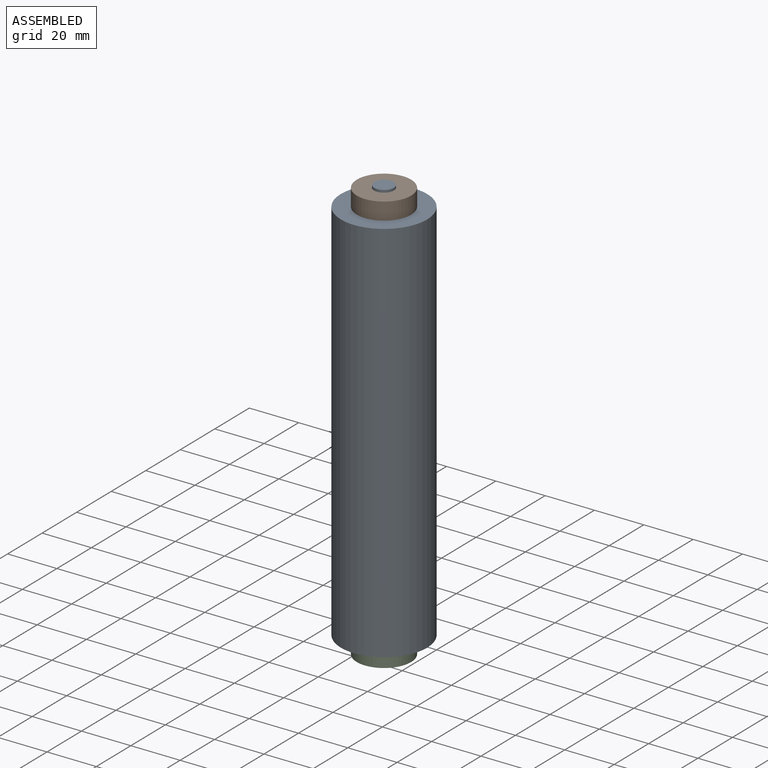
[diagram: assembled view]
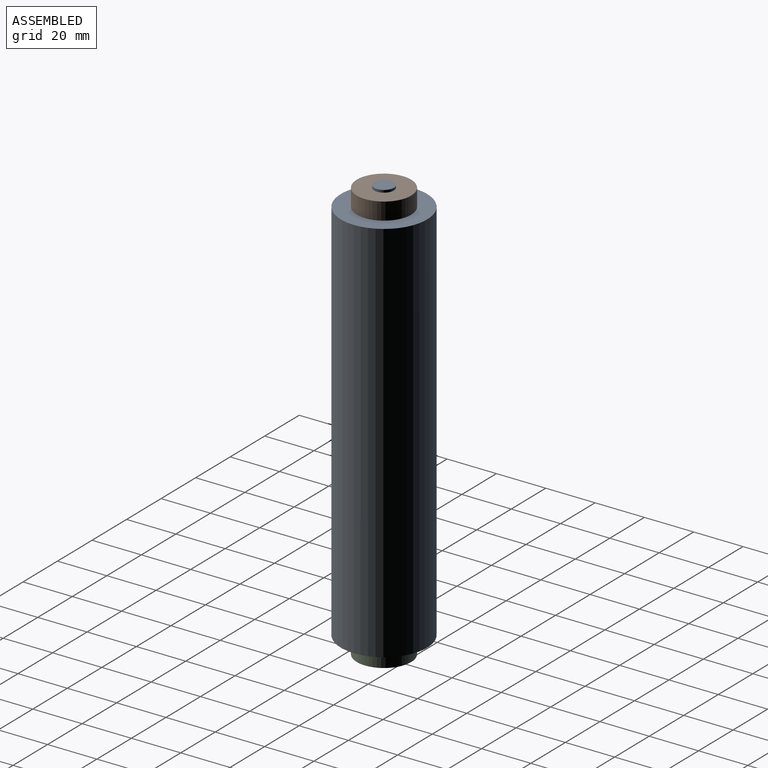
[diagram: assembled view, second angle]
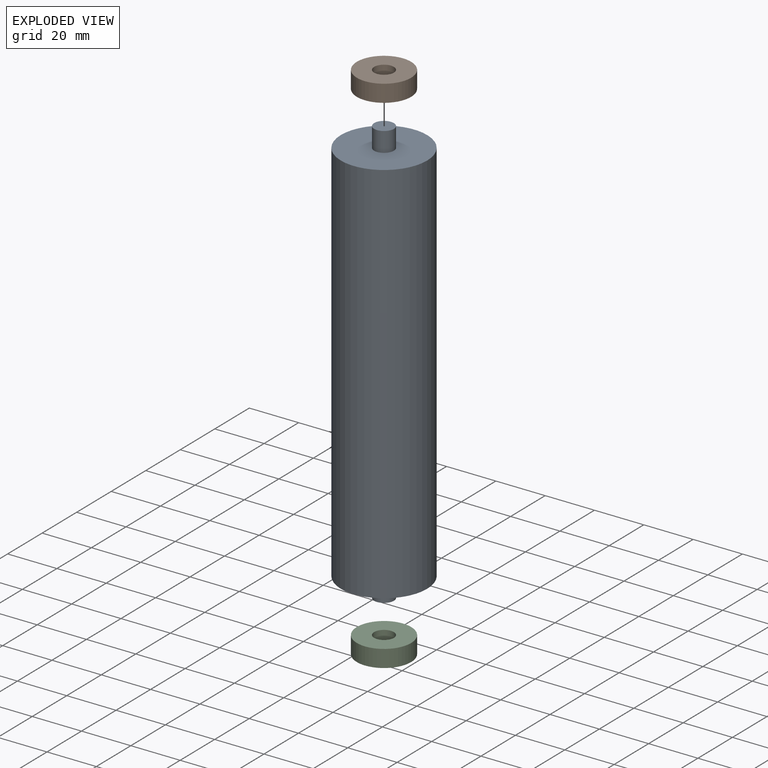
[diagram: exploded view]
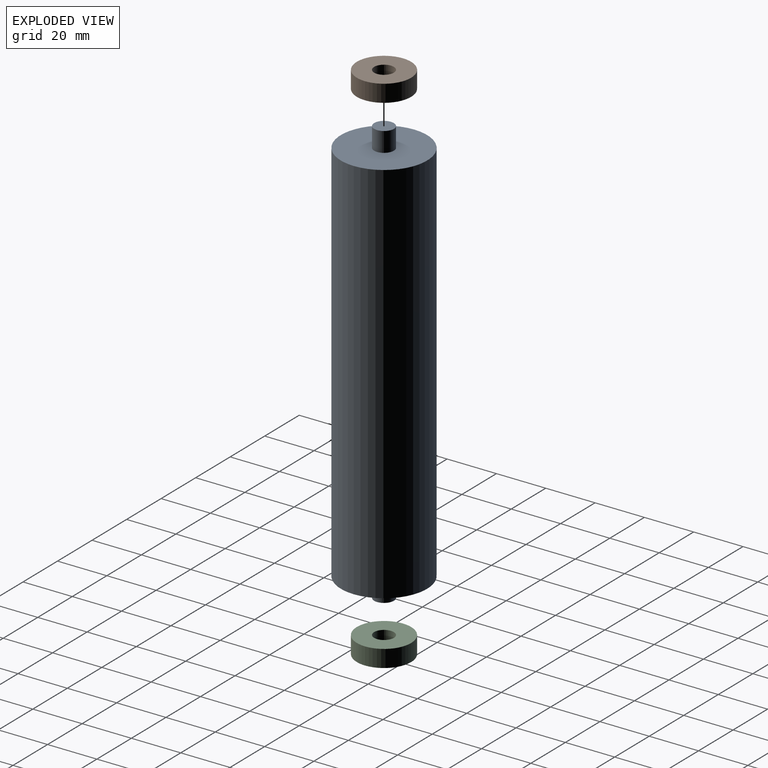
[diagram: exploded view, second angle]
ASSEMBLY  parts=3 mates=4
PART A: 7 faces, bbox 35x35x173 mm
  f0: cylinder r=17.5mm len=157mm, axis (0,0,-1), area 17263.1mm2, adj f1,f2
  f1: plane 35x35mm, normal (0,0,1), area 911.8mm2, adj f0,f3
  f2: plane 35x35mm, normal (0,0,-1), area 911.8mm2, adj f0,f5
  f3: cylinder r=4mm len=8mm, axis (0,0,-1), area 201.1mm2, adj f1,f4
  f4: plane 8x8mm, normal (0,0,1), area 50.3mm2, adj f3
  f5: cylinder r=4mm len=8mm, axis (0,0,1), area 201.1mm2, adj f2,f6
  f6: plane 8x8mm, normal (0,0,-1), area 50.3mm2, adj f5
PART B: 4 faces, bbox 22x22x7 mm
  f0: cylinder r=4mm len=8mm, axis (0,0,-1), area 175.9mm2, adj f2,f3
  f1: cylinder r=11mm len=22mm, axis (0,0,-1), area 483.8mm2, adj f2,f3
  f2: plane 22x22mm, normal (0,0,1), area 329.9mm2, adj f0,f1
  f3: plane 22x22mm, normal (0,0,-1), area 329.9mm2, adj f0,f1
PART C: same geometry as B
PLACE A t=(-49.15,-25.95,-49.26)mm
PLACE B t=(-49.15,-25.95,32.74)mm
PLACE C t=(-49.15,-25.95,-131.26)mm
MATE planar A.f0 <-> C.f1  axis (0,0,-1) through (-49.15,-25.95,-127.76)mm
MATE cylindrical C.f0 <-> A.f5  axis (0,0,-1) through (-49.15,-25.95,-131.26)mm
MATE planar A.f0 <-> B.f1  axis (0,0,1) through (-49.15,-25.95,29.24)mm
MATE cylindrical B.f0 <-> A.f3  axis (0,0,1) through (-49.15,-25.95,36.24)mm
